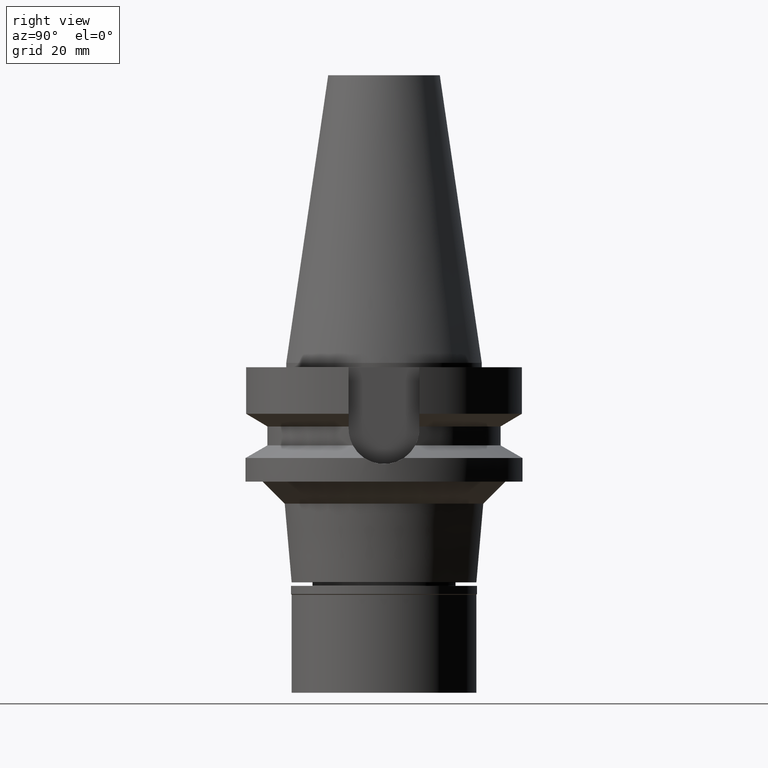
[diagram: clean part render]
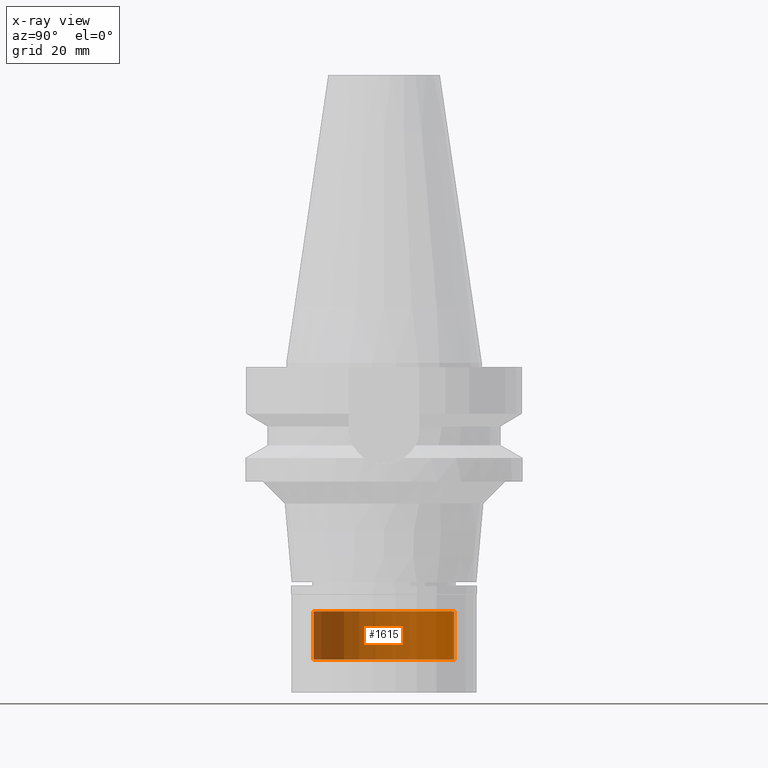
[diagram: x-ray — body ghosted, one internal face saturated and labeled with its STEP entity id]
A machine part, right view, then the same camera in x-ray: the body is ghosted and one INTERNAL B-rep face — a face not visible from any outside direction — is saturated and labeled: STEP entity #1615.
In plain terms, the highlighted cylindrical surface (partial cylindrical patch) has radius 16 mm, axis along (0, 0, -1).
Its self-contained STEP definition (entity closure, byte-faithful):
#22 = CARTESIAN_POINT ( 'NONE',  ( 0.0000000000000000000, 2.106943585592999780E-14, -56.50000000000000000 ) ) ;
#31 = CYLINDRICAL_SURFACE ( 'NONE', #2673, 16.00000000000000000 ) ;
#205 = VERTEX_POINT ( 'NONE', #1722 ) ;
#272 = DIRECTION ( 'NONE',  ( 0.0000000000000000000, 0.0000000000000000000, -1.000000000000000000 ) ) ;
#278 = DIRECTION ( 'NONE',  ( 0.0000000000000000000, 0.0000000000000000000, -1.000000000000000000 ) ) ;
#504 = CARTESIAN_POINT ( 'NONE',  ( 0.0000000000000000000, 2.106943585592999780E-14, 72.04500000000000171 ) ) ;
#687 = ORIENTED_EDGE ( 'NONE', *, *, #1508, .F. ) ;
#751 = DIRECTION ( 'NONE',  ( 0.0000000000000000000, 0.0000000000000000000, -1.000000000000000000 ) ) ;
#814 = VERTEX_POINT ( 'NONE', #1871 ) ;
#998 = AXIS2_PLACEMENT_3D ( 'NONE', #22, #1441, #2391 ) ;
#1102 = DIRECTION ( 'NONE',  ( 0.0000000000000000000, 1.000000000000000000, 0.0000000000000000000 ) ) ;
#1342 = CARTESIAN_POINT ( 'NONE',  ( 0.0000000000000000000, 2.106943585592999780E-14, -67.50000000000000000 ) ) ;
#1441 = DIRECTION ( 'NONE',  ( 0.0000000000000000000, 0.0000000000000000000, -1.000000000000000000 ) ) ;
#1508 = EDGE_CURVE ( 'NONE', #205, #1990, #1933, .T. ) ;
#1574 = ORIENTED_EDGE ( 'NONE', *, *, #1988, .T. ) ;
#1615 = ADVANCED_FACE ( 'NONE', ( #2145 ), #31, .T. ) ;
#1722 = CARTESIAN_POINT ( 'NONE',  ( 0.0000000000000000000, -16.00000000000000000, -56.50000000000000000 ) ) ;
#1759 = EDGE_LOOP ( 'NONE', ( #2579, #687, #2754, #1574 ) ) ;
#1782 = CARTESIAN_POINT ( 'NONE',  ( 0.0000000000000000000, 16.00000000000000000, -67.50000000000000000 ) ) ;
#1871 = CARTESIAN_POINT ( 'NONE',  ( 0.0000000000000000000, 16.00000000000000000, -56.50000000000000000 ) ) ;
#1928 = LINE ( 'NONE', #2614, #2973 ) ;
#1933 = LINE ( 'NONE', #2129, #2328 ) ;
#1982 = CIRCLE ( 'NONE', #998, 16.00000000000000000 ) ;
#1988 = EDGE_CURVE ( 'NONE', #814, #2969, #1928, .T. ) ;
#1990 = VERTEX_POINT ( 'NONE', #2654 ) ;
#2129 = CARTESIAN_POINT ( 'NONE',  ( 0.0000000000000000000, -16.00000000000000000, -56.50000000000000000 ) ) ;
#2145 = FACE_OUTER_BOUND ( 'NONE', #1759, .T. ) ;
#2284 = AXIS2_PLACEMENT_3D ( 'NONE', #1342, #3006, #1102 ) ;
#2328 = VECTOR ( 'NONE', #751, 1000.000000000000000 ) ;
#2387 = CIRCLE ( 'NONE', #2284, 16.00000000000000000 ) ;
#2391 = DIRECTION ( 'NONE',  ( 0.0000000000000000000, -1.000000000000000000, 0.0000000000000000000 ) ) ;
#2579 = ORIENTED_EDGE ( 'NONE', *, *, #2905, .T. ) ;
#2614 = CARTESIAN_POINT ( 'NONE',  ( 0.0000000000000000000, 16.00000000000000000, -56.50000000000000000 ) ) ;
#2654 = CARTESIAN_POINT ( 'NONE',  ( 0.0000000000000000000, -16.00000000000000000, -67.50000000000000000 ) ) ;
#2673 = AXIS2_PLACEMENT_3D ( 'NONE', #504, #272, #2897 ) ;
#2712 = EDGE_CURVE ( 'NONE', #205, #814, #1982, .T. ) ;
#2754 = ORIENTED_EDGE ( 'NONE', *, *, #2712, .T. ) ;
#2897 = DIRECTION ( 'NONE',  ( 0.0000000000000000000, -1.000000000000000000, 0.0000000000000000000 ) ) ;
#2905 = EDGE_CURVE ( 'NONE', #2969, #1990, #2387, .T. ) ;
#2969 = VERTEX_POINT ( 'NONE', #1782 ) ;
#2973 = VECTOR ( 'NONE', #278, 1000.000000000000000 ) ;
#3006 = DIRECTION ( 'NONE',  ( 0.0000000000000000000, 0.0000000000000000000, 1.000000000000000000 ) ) ;